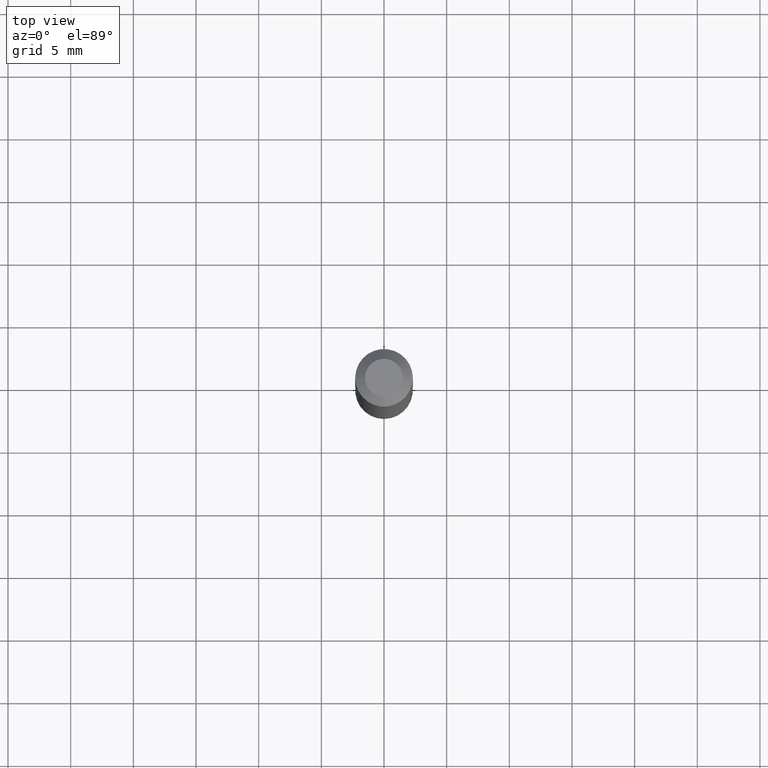
[diagram: clean part render]
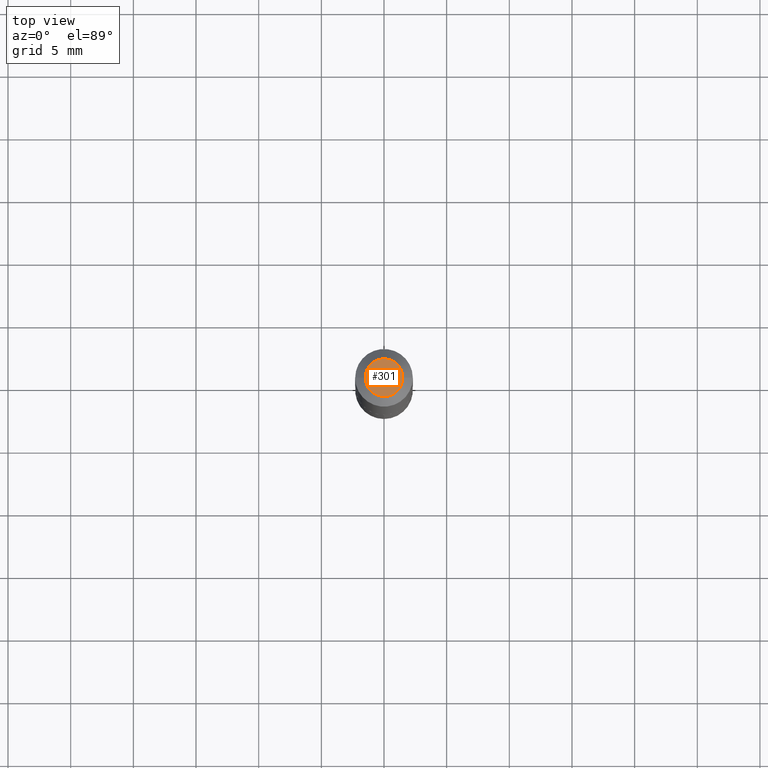
[diagram: same view with one face highlighted and labeled with its STEP entity id]
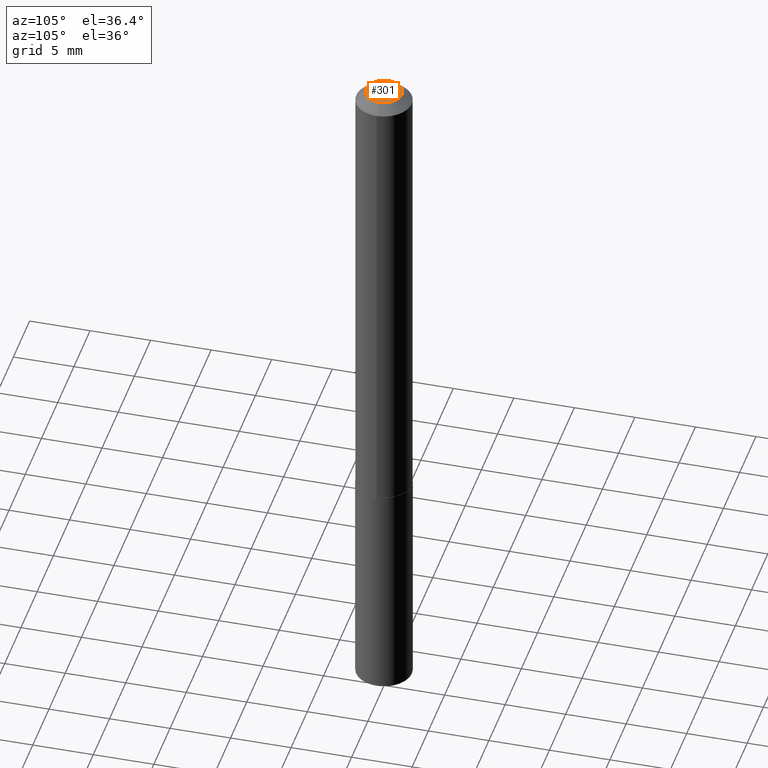
[diagram: same view with one face highlighted and labeled with its STEP entity id]
A machine part, top view. The second image highlights one B-rep face of the part: STEP entity #301.
A second angle (auxiliary view) of the same face is appended — the face is thin or edge-on in the first view.
In plain terms, the highlighted planar face has unit normal (0, -0, -1).
Its self-contained STEP definition (entity closure, byte-faithful):
#15 = EDGE_LOOP ( 'NONE', ( #336, #374 ) ) ;
#59 = CARTESIAN_POINT ( 'NONE',  ( 2.328484636944500097E-46, -3.324458949184895393E-32, -9.521628863370667050E-18 ) ) ;
#63 = DIRECTION ( 'NONE',  ( 1.000000000000000000, -6.982962677686267499E-15, 4.878054160638754682E-29 ) ) ;
#69 = CARTESIAN_POINT ( 'NONE',  ( 4.656969273889000194E-46, -6.648917898369790786E-32, -1.904325772674133410E-17 ) ) ;
#94 = PLANE ( 'NONE',  #165 ) ;
#122 = DIRECTION ( 'NONE',  ( 1.000000000000000000, -6.982962677686267499E-15, 4.878054160638754682E-29 ) ) ;
#127 = AXIS2_PLACEMENT_3D ( 'NONE', #69, #329, #63 ) ;
#165 = AXIS2_PLACEMENT_3D ( 'NONE', #59, #294, #359 ) ;
#178 = DIRECTION ( 'NONE',  ( -2.445468806185136597E-29, 3.491481338843145583E-15, 1.000000000000000000 ) ) ;
#179 = EDGE_CURVE ( 'NONE', #280, #251, #190, .T. ) ;
#190 = CIRCLE ( 'NONE', #298, 0.05929999999999999855 ) ;
#251 = VERTEX_POINT ( 'NONE', #363 ) ;
#255 = EDGE_CURVE ( 'NONE', #251, #280, #330, .T. ) ;
#280 = VERTEX_POINT ( 'NONE', #355 ) ;
#294 = DIRECTION ( 'NONE',  ( 2.438088387897960049E-29, -3.491481338843145188E-15, -1.000000000000000000 ) ) ;
#298 = AXIS2_PLACEMENT_3D ( 'NONE', #381, #178, #122 ) ;
#301 = ADVANCED_FACE ( 'NONE', ( #389 ), #94, .F. ) ;
#329 = DIRECTION ( 'NONE',  ( -2.445468806185136597E-29, 3.491481338843145583E-15, 1.000000000000000000 ) ) ;
#330 = CIRCLE ( 'NONE', #127, 0.05929999999999999855 ) ;
#336 = ORIENTED_EDGE ( 'NONE', *, *, #255, .T. ) ;
#355 = CARTESIAN_POINT ( 'NONE',  ( 0.05929999999999999855, -5.685772084024565515E-16, -1.904325772673789824E-17 ) ) ;
#359 = DIRECTION ( 'NONE',  ( -1.000000000000000000, 6.982962677686265922E-15, -4.876176775795935793E-29 ) ) ;
#363 = CARTESIAN_POINT ( 'NONE',  ( -0.05929999999999999855, 4.686440827062190019E-16, -1.904325772674442175E-17 ) ) ;
#374 = ORIENTED_EDGE ( 'NONE', *, *, #179, .T. ) ;
#381 = CARTESIAN_POINT ( 'NONE',  ( 4.656969273889000194E-46, -6.648917898369790786E-32, -1.904325772674133410E-17 ) ) ;
#389 = FACE_OUTER_BOUND ( 'NONE', #15, .T. ) ;